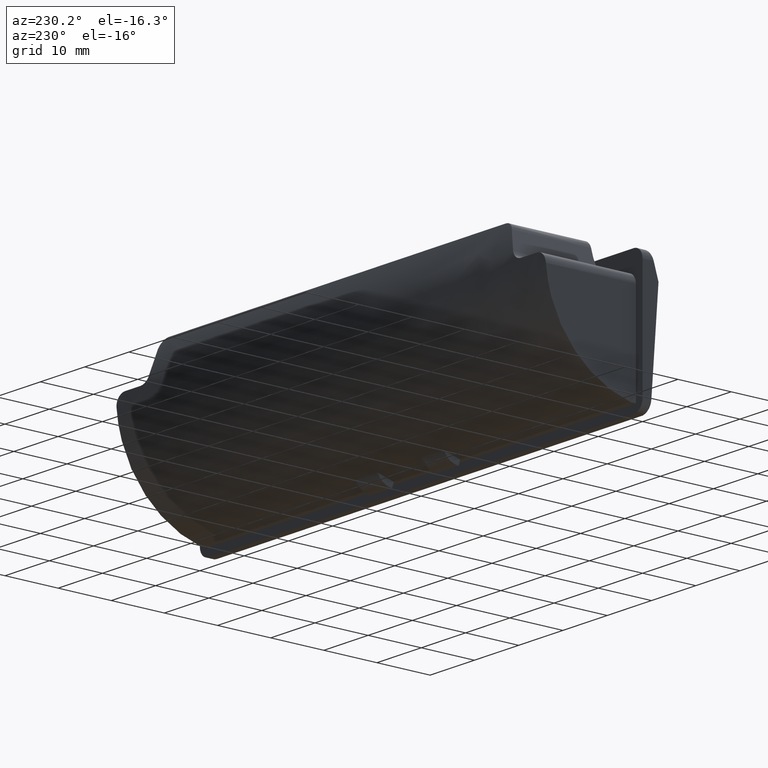
[diagram: clean part render]
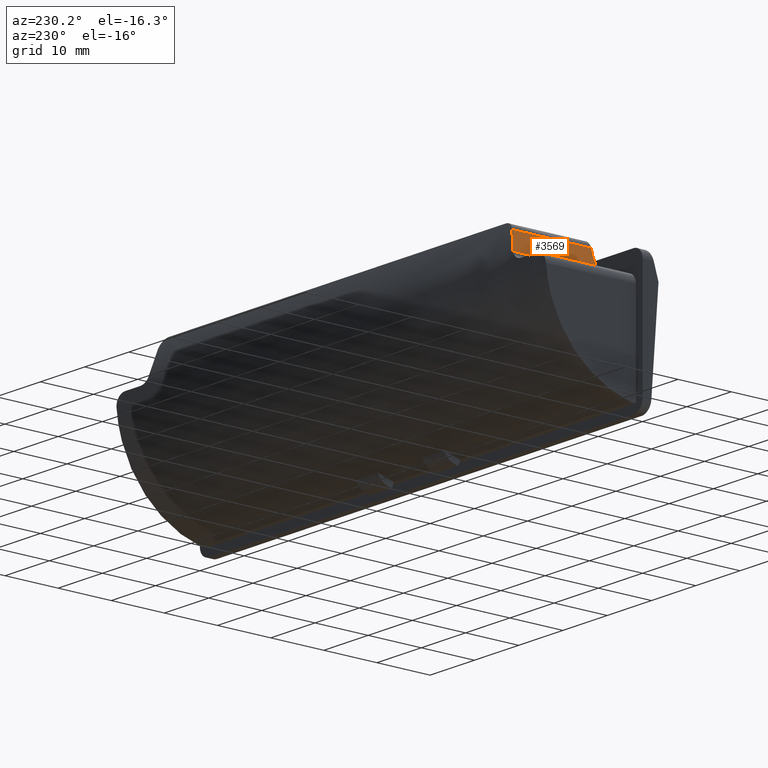
[diagram: same view with one face highlighted and labeled with its STEP entity id]
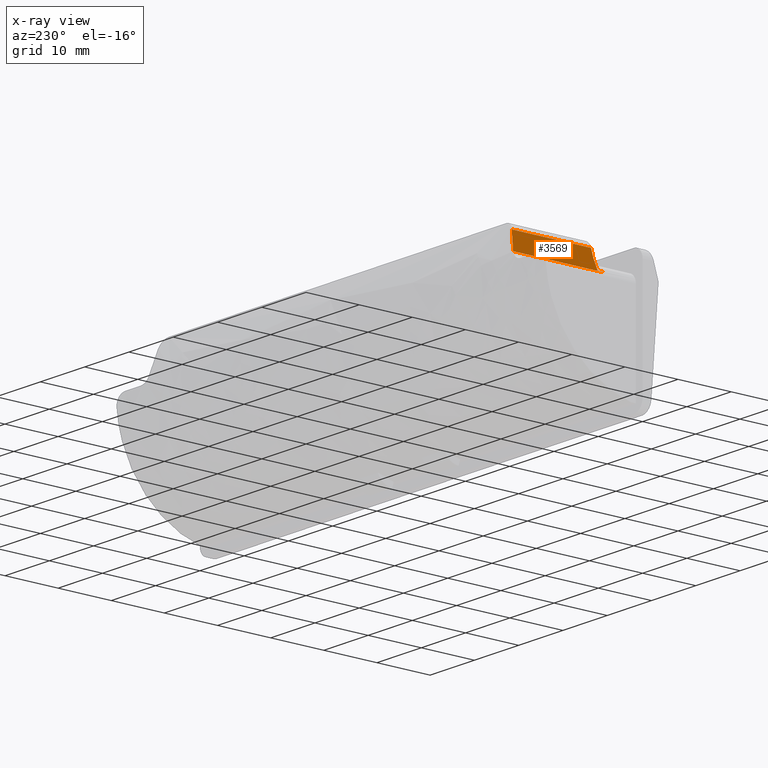
[diagram: x-ray of the same camera — body ghosted, the highlighted face saturated]
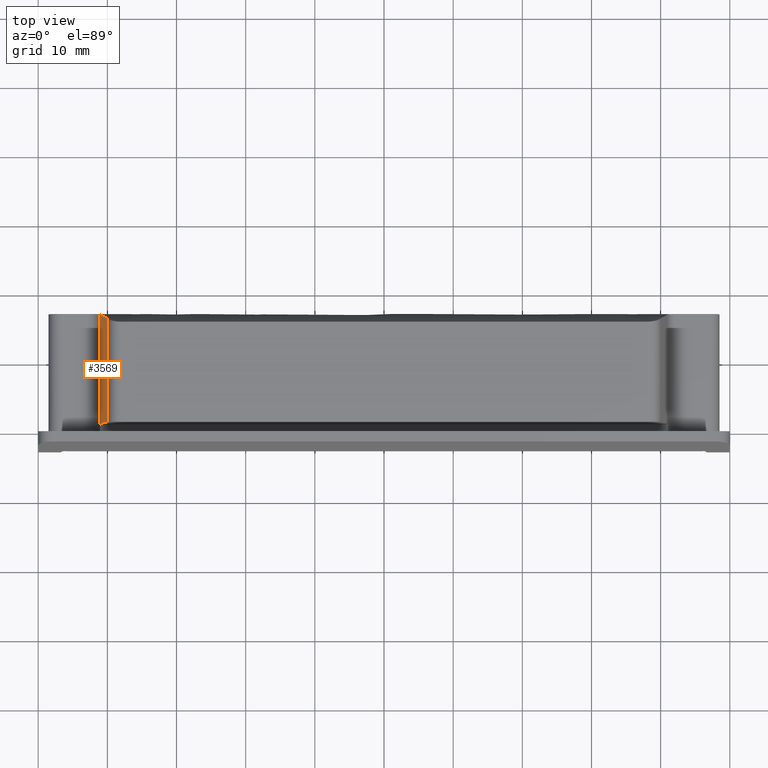
[diagram: same view with one face highlighted and labeled with its STEP entity id]
A machine part, auxiliary view. The second image highlights one B-rep face of the part: STEP entity #3569.
The next image is the same camera in x-ray: the body ghosted, the highlighted face saturated — about 0% of this face is hidden behind the body in this view.
A second angle (top view) of the same face is appended — the face is thin or edge-on in the first view.
In plain terms, the highlighted face is a freeform B-spline surface patch.
Its self-contained STEP definition (entity closure, byte-faithful):
#138=CARTESIAN_POINT('',(-41.065590794552797,16.917391105436650,-5.088171332296571));
#139=VERTEX_POINT('',#138);
#174=CARTESIAN_POINT('',(-41.065590794552897,0.0,-5.088171332296550));
#175=VERTEX_POINT('',#174);
#189=CARTESIAN_POINT('',(-41.065590794552797,16.917391105436650,-5.088171332296571));
#190=CARTESIAN_POINT('',(-41.065590794552897,0.0,-5.088171332296550));
#191=QUASI_UNIFORM_CURVE('',1,(#189,#190),.UNSPECIFIED.,.F.,.U.);
#192=EDGE_CURVE('',#139,#175,#191,.T.);
#211=CARTESIAN_POINT('',(-39.934409205447047,16.231098599245051,-1.411828667703528));
#212=VERTEX_POINT('',#211);
#242=CARTESIAN_POINT('',(-39.934409205446897,1.300000000000096,-1.411828667703620));
#243=VERTEX_POINT('',#242);
#244=CARTESIAN_POINT('',(-39.934409205446897,1.300000000000096,-1.411828667703620));
#245=CARTESIAN_POINT('',(-39.934409205447047,16.231098599245051,-1.411828667703528));
#246=QUASI_UNIFORM_CURVE('',1,(#244,#245),.UNSPECIFIED.,.F.,.U.);
#247=EDGE_CURVE('',#243,#212,#246,.T.);
#3521=CARTESIAN_POINT('',(-39.877906755017463,-0.845023592486572,-1.228195578932275));
#3522=CARTESIAN_POINT('',(-41.122093255096132,-0.845023592486572,-5.271804453936846));
#3523=CARTESIAN_POINT('',(-39.877906755017463,17.762413941656909,-1.228195578932275));
#3524=CARTESIAN_POINT('',(-41.122093255096132,17.762413941656909,-5.271804453936846));
#3525=B_SPLINE_SURFACE_WITH_KNOTS('',1,1,((#3521,#3523),(#3522,#3524)),.UNSPECIFIED.,.F.,.F.,.U.,(2,2),(2,2),(0.0,4.230694125199047),(0.0,18.607437534143489),.UNSPECIFIED.);
#3526=CARTESIAN_POINT('',(-40.423076975386152,1.300000000000096,-2.999999999999835));
#3527=VERTEX_POINT('',#3526);
#3528=CARTESIAN_POINT('',(-40.423076975386152,1.300000000000096,-2.999999999999835));
#3529=CARTESIAN_POINT('',(-39.934409205446897,1.300000000000096,-1.411828667703620));
#3530=QUASI_UNIFORM_CURVE('',1,(#3528,#3529),.UNSPECIFIED.,.F.,.U.);
#3531=EDGE_CURVE('',#3527,#243,#3530,.T.);
#3532=ORIENTED_EDGE('',*,*,#3531,.T.);
#3533=ORIENTED_EDGE('',*,*,#247,.T.);
#3534=CARTESIAN_POINT('',(-41.065590794552797,16.917391105436650,-5.088171332296571));
#3535=CARTESIAN_POINT('',(-40.490084911913577,16.746863202237147,-3.217775941806237));
#3536=CARTESIAN_POINT('',(-39.934409205447082,16.231098599245051,-1.411828667703601));
#3544=(BOUNDED_CURVE()B_SPLINE_CURVE(2,(#3534,#3535,#3536),.UNSPECIFIED.,.F.,.U.)CURVE()GEOMETRIC_REPRESENTATION_ITEM()QUASI_UNIFORM_CURVE()RATIONAL_B_SPLINE_CURVE((1.0,0.995619627169594,1.0))REPRESENTATION_ITEM(''));
#3545=EDGE_CURVE('',#139,#212,#3544,.T.);
#3546=ORIENTED_EDGE('',*,*,#3545,.F.);
#3547=ORIENTED_EDGE('',*,*,#192,.T.);
#3548=CARTESIAN_POINT('',(-41.038461172295051,0.0,-5.0));
#3549=VERTEX_POINT('',#3548);
#3550=CARTESIAN_POINT('',(-41.065590794552897,0.0,-5.088171332296550));
#3551=CARTESIAN_POINT('',(-41.038461172295051,0.0,-5.0));
#3552=QUASI_UNIFORM_CURVE('',1,(#3550,#3551),.UNSPECIFIED.,.F.,.U.);
#3553=EDGE_CURVE('',#175,#3549,#3552,.T.);
#3554=ORIENTED_EDGE('',*,*,#3553,.T.);
#3555=CARTESIAN_POINT('',(-41.038461172295001,1.000000000000090,-5.0));
#3556=VERTEX_POINT('',#3555);
#3557=CARTESIAN_POINT('',(-41.038461172295051,0.0,-5.0));
#3558=CARTESIAN_POINT('',(-41.038461172295001,1.000000000000090,-5.0));
#3559=QUASI_UNIFORM_CURVE('',1,(#3557,#3558),.UNSPECIFIED.,.F.,.U.);
#3560=EDGE_CURVE('',#3549,#3556,#3559,.T.);
#3561=ORIENTED_EDGE('',*,*,#3560,.T.);
#3562=CARTESIAN_POINT('',(-41.038461172295001,1.000000000000090,-5.0));
#3563=CARTESIAN_POINT('',(-40.423076975386152,1.300000000000096,-2.999999999999835));
#3564=QUASI_UNIFORM_CURVE('',1,(#3562,#3563),.UNSPECIFIED.,.F.,.U.);
#3565=EDGE_CURVE('',#3556,#3527,#3564,.T.);
#3566=ORIENTED_EDGE('',*,*,#3565,.T.);
#3567=EDGE_LOOP('',(#3532,#3533,#3546,#3547,#3554,#3561,#3566));
#3568=FACE_OUTER_BOUND('',#3567,.T.);
#3569=ADVANCED_FACE('',(#3568),#3525,.F.);